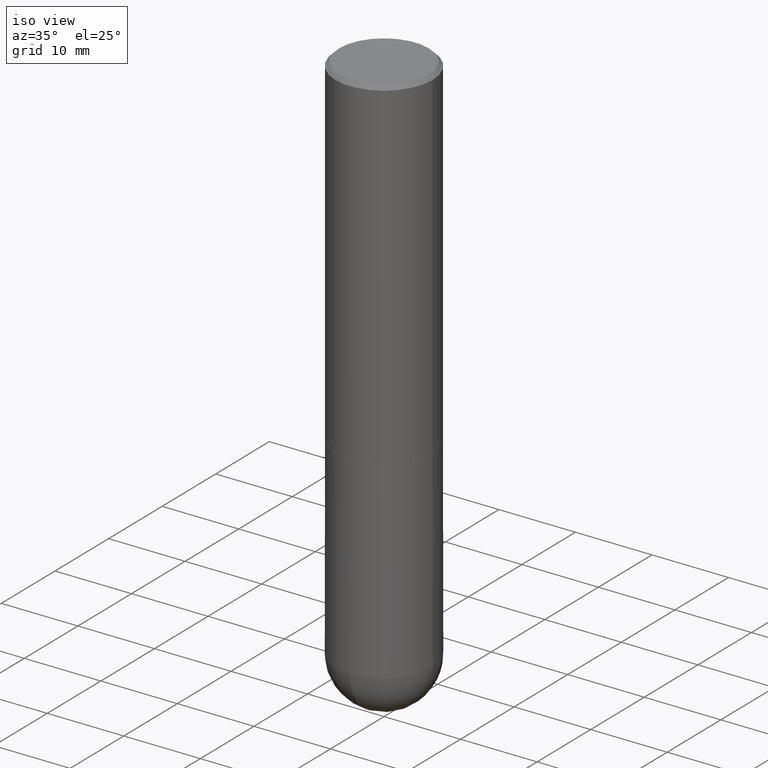
[diagram: clean part render]
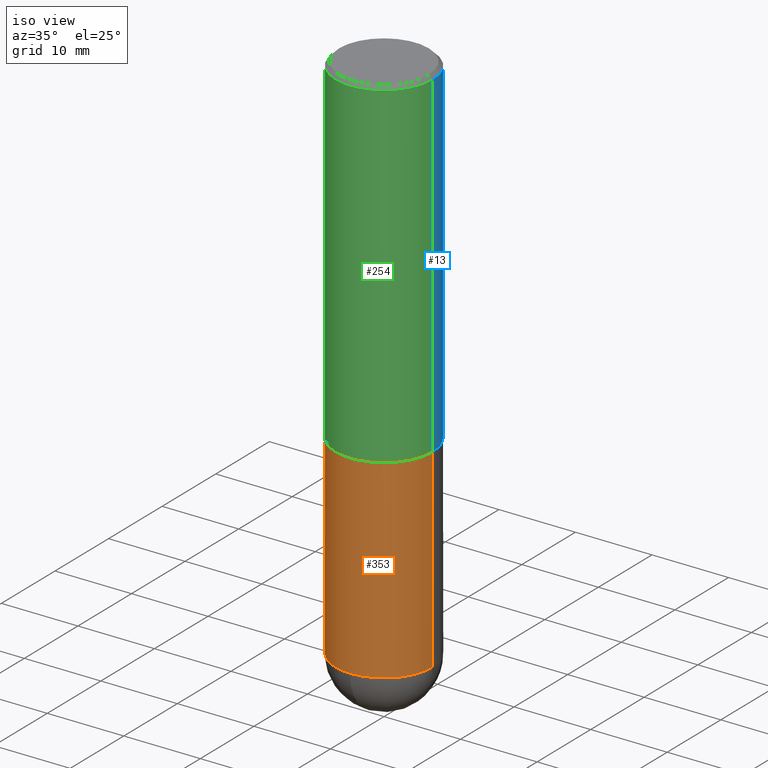
[diagram: same view with three faces highlighted in distinct colors, each labeled with its STEP entity id]
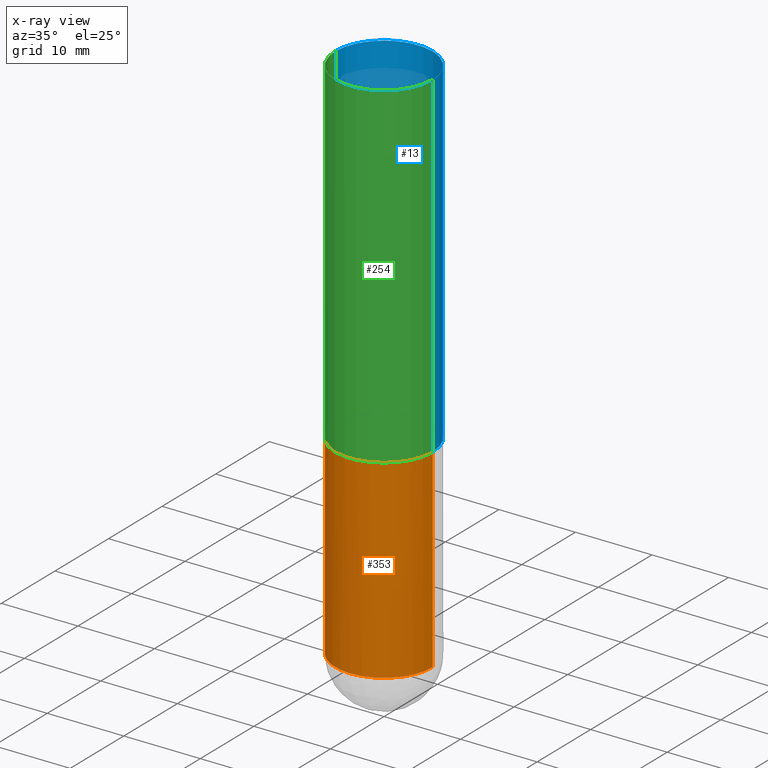
[diagram: x-ray of the same camera — body ghosted, the three highlighted faces saturated]
A machine part, iso view with three faces highlighted in distinct colors.
The next image is the same camera in x-ray (body ghosted, the three faces saturated) — at least one of them is partly hidden behind the body in this view.
Their STEP definitions:

[orange] entity #353 — the highlighted cylindrical surface (partial cylindrical patch) has radius 6.35 mm, axis along (-0, 0, 1).
#7 = DIRECTION ( 'NONE',  ( 1.000000000000000000, -6.982962677686262766E-15, 0.000000000000000000 ) ) ;
#9 = CARTESIAN_POINT ( 'NONE',  ( 6.725039217009124520E-29, -9.601573681818649859E-15, -2.750000000000000000 ) ) ;
#10 = DIRECTION ( 'NONE',  ( -2.445468806185136877E-29, 3.491481338843145188E-15, 1.000000000000000000 ) ) ;
#17 = CIRCLE ( 'NONE', #45, 0.2500000000000000000 ) ;
#19 = CYLINDRICAL_SURFACE ( 'NONE', #381, 0.2500000000000000000 ) ;
#24 = VERTEX_POINT ( 'NONE', #149 ) ;
#26 = VERTEX_POINT ( 'NONE', #218 ) ;
#37 = EDGE_CURVE ( 'NONE', #24, #26, #257, .T. ) ;
#45 = AXIS2_PLACEMENT_3D ( 'NONE', #119, #144, #109 ) ;
#51 = ORIENTED_EDGE ( 'NONE', *, *, #406, .T. ) ;
#60 = CIRCLE ( 'NONE', #295, 0.2500000000000000000 ) ;
#80 = CARTESIAN_POINT ( 'NONE',  ( 0.000000000000000000, 0.000000000000000000, 0.000000000000000000 ) ) ;
#93 = VERTEX_POINT ( 'NONE', #203 ) ;
#94 = VECTOR ( 'NONE', #10, 39.37007874015748143 ) ;
#109 = DIRECTION ( 'NONE',  ( 1.000000000000000000, -6.982962677686266711E-15, 0.000000000000000000 ) ) ;
#115 = VECTOR ( 'NONE', #286, 39.37007874015748143 ) ;
#119 = CARTESIAN_POINT ( 'NONE',  ( 4.279570410823989044E-29, -6.110092342975505460E-15, -1.750000000000000222 ) ) ;
#126 = ORIENTED_EDGE ( 'NONE', *, *, #179, .F. ) ;
#127 = EDGE_CURVE ( 'NONE', #24, #93, #253, .T. ) ;
#133 = AXIS2_PLACEMENT_3D ( 'NONE', #261, #229, #7 ) ;
#144 = DIRECTION ( 'NONE',  ( -2.445468806185136597E-29, 3.491481338843145583E-15, 1.000000000000000000 ) ) ;
#149 = CARTESIAN_POINT ( 'NONE',  ( -0.2500000000000000000, -6.079476172996828773E-15, -2.750000000000000000 ) ) ;
#179 = EDGE_CURVE ( 'NONE', #26, #183, #17, .T. ) ;
#183 = VERTEX_POINT ( 'NONE', #239 ) ;
#195 = CARTESIAN_POINT ( 'NONE',  ( 0.2500000000000000000, -1.745740669421566678E-15, 1.219044193948983948E-29 ) ) ;
#203 = CARTESIAN_POINT ( 'NONE',  ( -1.776356839400184989E-15, -0.2500000000000098810, -2.749999999999998668 ) ) ;
#210 = ORIENTED_EDGE ( 'NONE', *, *, #276, .T. ) ;
#218 = CARTESIAN_POINT ( 'NONE',  ( -0.2500000000000000000, -6.079476172996827195E-15, -1.750000000000000222 ) ) ;
#229 = DIRECTION ( 'NONE',  ( -2.445468806185136597E-29, 3.491481338843145583E-15, 1.000000000000000000 ) ) ;
#238 = EDGE_LOOP ( 'NONE', ( #393, #311, #51, #210, #126 ) ) ;
#239 = CARTESIAN_POINT ( 'NONE',  ( 0.2500000000000000000, -7.855833012397072137E-15, -1.750000000000000222 ) ) ;
#252 = CARTESIAN_POINT ( 'NONE',  ( 0.2500000000000000000, -9.601573681818646704E-15, -2.750000000000000000 ) ) ;
#253 = CIRCLE ( 'NONE', #133, 0.2500000000000000000 ) ;
#257 = LINE ( 'NONE', #321, #115 ) ;
#261 = CARTESIAN_POINT ( 'NONE',  ( 6.725039217009124520E-29, -9.601573681818649859E-15, -2.750000000000000000 ) ) ;
#270 = DIRECTION ( 'NONE',  ( -2.445468806185136597E-29, 3.491481338843145583E-15, 1.000000000000000000 ) ) ;
#276 = EDGE_CURVE ( 'NONE', #405, #183, #293, .T. ) ;
#286 = DIRECTION ( 'NONE',  ( -2.445468806185136877E-29, 3.491481338843145188E-15, 1.000000000000000000 ) ) ;
#293 = LINE ( 'NONE', #195, #94 ) ;
#295 = AXIS2_PLACEMENT_3D ( 'NONE', #9, #270, #384 ) ;
#311 = ORIENTED_EDGE ( 'NONE', *, *, #127, .T. ) ;
#321 = CARTESIAN_POINT ( 'NONE',  ( -0.2500000000000000000, 1.776356839400250465E-15, -1.229733772563726445E-29 ) ) ;
#331 = DIRECTION ( 'NONE',  ( 1.000000000000000000, -6.982962677686266711E-15, 4.876176775795935793E-29 ) ) ;
#333 = DIRECTION ( 'NONE',  ( -2.445468806185136597E-29, 3.491481338843145583E-15, 1.000000000000000000 ) ) ;
#353 = ADVANCED_FACE ( 'NONE', ( #395 ), #19, .T. ) ;
#381 = AXIS2_PLACEMENT_3D ( 'NONE', #80, #333, #331 ) ;
#384 = DIRECTION ( 'NONE',  ( 1.000000000000000000, -6.982962677686262766E-15, 0.000000000000000000 ) ) ;
#393 = ORIENTED_EDGE ( 'NONE', *, *, #37, .F. ) ;
#395 = FACE_OUTER_BOUND ( 'NONE', #238, .T. ) ;
#405 = VERTEX_POINT ( 'NONE', #252 ) ;
#406 = EDGE_CURVE ( 'NONE', #93, #405, #60, .T. ) ;

[blue] entity #13 — the highlighted cylindrical surface (partial cylindrical patch) has radius 6.35 mm, axis along (-0, 0, 1).
#13 = ADVANCED_FACE ( 'NONE', ( #371 ), #90, .T. ) ;
#29 = CARTESIAN_POINT ( 'NONE',  ( 4.277124942017804562E-29, -6.106600861636661664E-15, -1.749000000000000110 ) ) ;
#41 = DIRECTION ( 'NONE',  ( 1.000000000000000000, -6.982962677686266711E-15, 0.000000000000000000 ) ) ;
#48 = DIRECTION ( 'NONE',  ( -2.445468806185136877E-29, 3.491481338843145188E-15, 1.000000000000000000 ) ) ;
#58 = ORIENTED_EDGE ( 'NONE', *, *, #151, .T. ) ;
#81 = LINE ( 'NONE', #328, #271 ) ;
#87 = CARTESIAN_POINT ( 'NONE',  ( 0.2500000000000002220, -7.852341531058230708E-15, -1.749000000000000110 ) ) ;
#90 = CYLINDRICAL_SURFACE ( 'NONE', #401, 0.2500000000000001110 ) ;
#96 = DIRECTION ( 'NONE',  ( 1.000000000000000000, -6.982962677686267499E-15, 4.876176775795936353E-29 ) ) ;
#102 = CARTESIAN_POINT ( 'NONE',  ( 0.2500000000000000000, -1.784954126219746189E-15, -0.02000000000000005593 ) ) ;
#129 = DIRECTION ( 'NONE',  ( -2.445468806185136597E-29, 3.491481338843145583E-15, 1.000000000000000000 ) ) ;
#132 = DIRECTION ( 'NONE',  ( -2.445468806185136597E-29, 3.491481338843145583E-15, 1.000000000000000000 ) ) ;
#150 = CIRCLE ( 'NONE', #386, 0.2500000000000000000 ) ;
#151 = EDGE_CURVE ( 'NONE', #180, #188, #243, .T. ) ;
#163 = DIRECTION ( 'NONE',  ( -2.445468806185136877E-29, 3.491481338843145188E-15, 1.000000000000000000 ) ) ;
#166 = EDGE_LOOP ( 'NONE', ( #58, #279, #374, #364 ) ) ;
#174 = CARTESIAN_POINT ( 'NONE',  ( 0.2500000000000001110, -1.745740669421567664E-15, 1.219044193948984649E-29 ) ) ;
#177 = CARTESIAN_POINT ( 'NONE',  ( -0.2500000000000000000, 1.675911042644703577E-15, -0.02000000000000005593 ) ) ;
#178 = CARTESIAN_POINT ( 'NONE',  ( -0.2500000000000002220, -1.311858404806509058E-15, -1.749000000000000110 ) ) ;
#180 = VERTEX_POINT ( 'NONE', #87 ) ;
#188 = VERTEX_POINT ( 'NONE', #178 ) ;
#214 = CARTESIAN_POINT ( 'NONE',  ( 0.000000000000000000, 0.000000000000000000, 0.000000000000000000 ) ) ;
#232 = LINE ( 'NONE', #174, #368 ) ;
#243 = CIRCLE ( 'NONE', #297, 0.2500000000000002220 ) ;
#246 = EDGE_CURVE ( 'NONE', #188, #304, #81, .T. ) ;
#271 = VECTOR ( 'NONE', #48, 39.37007874015748143 ) ;
#279 = ORIENTED_EDGE ( 'NONE', *, *, #246, .T. ) ;
#285 = DIRECTION ( 'NONE',  ( -2.445468806185136597E-29, 3.491481338843145583E-15, 1.000000000000000000 ) ) ;
#290 = EDGE_CURVE ( 'NONE', #407, #304, #150, .T. ) ;
#297 = AXIS2_PLACEMENT_3D ( 'NONE', #29, #285, #377 ) ;
#304 = VERTEX_POINT ( 'NONE', #177 ) ;
#323 = CARTESIAN_POINT ( 'NONE',  ( 4.890937612370287172E-31, -6.982962677686310098E-17, -0.02000000000000005593 ) ) ;
#328 = CARTESIAN_POINT ( 'NONE',  ( -0.2500000000000001110, 1.776356839400251254E-15, -1.229733772563727146E-29 ) ) ;
#364 = ORIENTED_EDGE ( 'NONE', *, *, #410, .F. ) ;
#368 = VECTOR ( 'NONE', #163, 39.37007874015748143 ) ;
#371 = FACE_OUTER_BOUND ( 'NONE', #166, .T. ) ;
#374 = ORIENTED_EDGE ( 'NONE', *, *, #290, .F. ) ;
#377 = DIRECTION ( 'NONE',  ( 1.000000000000000000, -6.982962677686268288E-15, 0.000000000000000000 ) ) ;
#386 = AXIS2_PLACEMENT_3D ( 'NONE', #323, #132, #41 ) ;
#401 = AXIS2_PLACEMENT_3D ( 'NONE', #214, #129, #96 ) ;
#407 = VERTEX_POINT ( 'NONE', #102 ) ;
#410 = EDGE_CURVE ( 'NONE', #180, #407, #232, .T. ) ;

[green] entity #254 — the highlighted cylindrical surface (partial cylindrical patch) has radius 6.35 mm, axis along (-0, 0, 1).
#44 = AXIS2_PLACEMENT_3D ( 'NONE', #349, #398, #86 ) ;
#48 = DIRECTION ( 'NONE',  ( -2.445468806185136877E-29, 3.491481338843145188E-15, 1.000000000000000000 ) ) ;
#50 = ORIENTED_EDGE ( 'NONE', *, *, #74, .T. ) ;
#59 = DIRECTION ( 'NONE',  ( -2.445468806185136597E-29, 3.491481338843145583E-15, 1.000000000000000000 ) ) ;
#74 = EDGE_CURVE ( 'NONE', #188, #180, #223, .T. ) ;
#78 = ORIENTED_EDGE ( 'NONE', *, *, #246, .F. ) ;
#81 = LINE ( 'NONE', #328, #271 ) ;
#86 = DIRECTION ( 'NONE',  ( 1.000000000000000000, -6.982962677686266711E-15, 0.000000000000000000 ) ) ;
#87 = CARTESIAN_POINT ( 'NONE',  ( 0.2500000000000002220, -7.852341531058230708E-15, -1.749000000000000110 ) ) ;
#88 = ORIENTED_EDGE ( 'NONE', *, *, #410, .T. ) ;
#102 = CARTESIAN_POINT ( 'NONE',  ( 0.2500000000000000000, -1.784954126219746189E-15, -0.02000000000000005593 ) ) ;
#142 = EDGE_LOOP ( 'NONE', ( #78, #50, #88, #200 ) ) ;
#145 = AXIS2_PLACEMENT_3D ( 'NONE', #221, #59, #289 ) ;
#154 = CARTESIAN_POINT ( 'NONE',  ( 4.277124942017804562E-29, -6.106600861636661664E-15, -1.749000000000000110 ) ) ;
#163 = DIRECTION ( 'NONE',  ( -2.445468806185136877E-29, 3.491481338843145188E-15, 1.000000000000000000 ) ) ;
#169 = EDGE_CURVE ( 'NONE', #304, #407, #324, .T. ) ;
#174 = CARTESIAN_POINT ( 'NONE',  ( 0.2500000000000001110, -1.745740669421567664E-15, 1.219044193948984649E-29 ) ) ;
#177 = CARTESIAN_POINT ( 'NONE',  ( -0.2500000000000000000, 1.675911042644703577E-15, -0.02000000000000005593 ) ) ;
#178 = CARTESIAN_POINT ( 'NONE',  ( -0.2500000000000002220, -1.311858404806509058E-15, -1.749000000000000110 ) ) ;
#180 = VERTEX_POINT ( 'NONE', #87 ) ;
#188 = VERTEX_POINT ( 'NONE', #178 ) ;
#197 = AXIS2_PLACEMENT_3D ( 'NONE', #154, #264, #226 ) ;
#200 = ORIENTED_EDGE ( 'NONE', *, *, #169, .F. ) ;
#216 = FACE_OUTER_BOUND ( 'NONE', #142, .T. ) ;
#221 = CARTESIAN_POINT ( 'NONE',  ( 0.000000000000000000, 0.000000000000000000, 0.000000000000000000 ) ) ;
#223 = CIRCLE ( 'NONE', #197, 0.2500000000000002220 ) ;
#226 = DIRECTION ( 'NONE',  ( 1.000000000000000000, -6.982962677686268288E-15, 0.000000000000000000 ) ) ;
#232 = LINE ( 'NONE', #174, #368 ) ;
#246 = EDGE_CURVE ( 'NONE', #188, #304, #81, .T. ) ;
#254 = ADVANCED_FACE ( 'NONE', ( #216 ), #338, .T. ) ;
#264 = DIRECTION ( 'NONE',  ( -2.445468806185136597E-29, 3.491481338843145583E-15, 1.000000000000000000 ) ) ;
#271 = VECTOR ( 'NONE', #48, 39.37007874015748143 ) ;
#289 = DIRECTION ( 'NONE',  ( 1.000000000000000000, -6.982962677686267499E-15, 4.876176775795936353E-29 ) ) ;
#304 = VERTEX_POINT ( 'NONE', #177 ) ;
#324 = CIRCLE ( 'NONE', #44, 0.2500000000000000000 ) ;
#328 = CARTESIAN_POINT ( 'NONE',  ( -0.2500000000000001110, 1.776356839400251254E-15, -1.229733772563727146E-29 ) ) ;
#338 = CYLINDRICAL_SURFACE ( 'NONE', #145, 0.2500000000000001110 ) ;
#349 = CARTESIAN_POINT ( 'NONE',  ( 4.890937612370287172E-31, -6.982962677686310098E-17, -0.02000000000000005593 ) ) ;
#368 = VECTOR ( 'NONE', #163, 39.37007874015748143 ) ;
#398 = DIRECTION ( 'NONE',  ( -2.445468806185136597E-29, 3.491481338843145583E-15, 1.000000000000000000 ) ) ;
#407 = VERTEX_POINT ( 'NONE', #102 ) ;
#410 = EDGE_CURVE ( 'NONE', #180, #407, #232, .T. ) ;